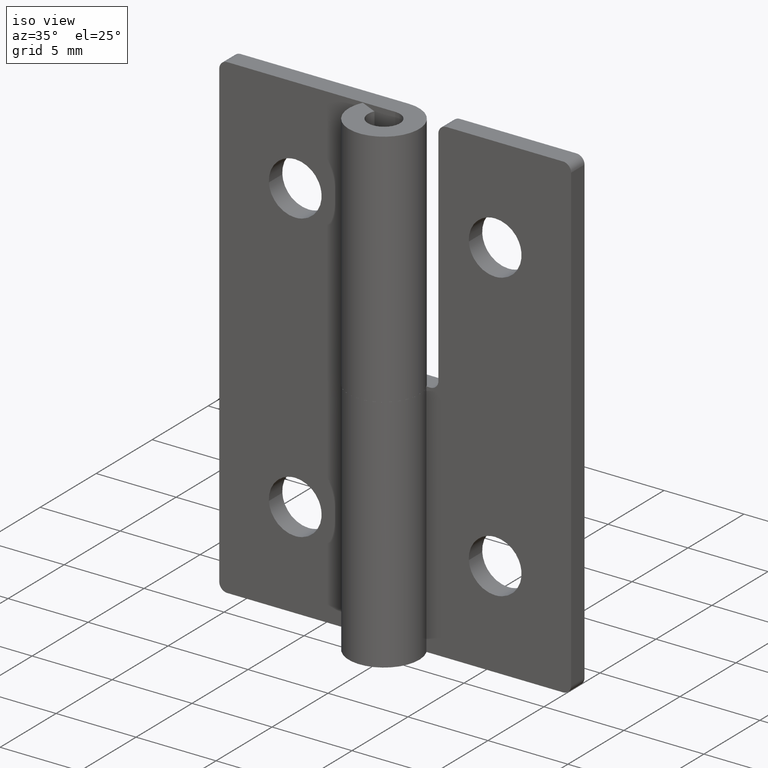
[diagram: clean part render]
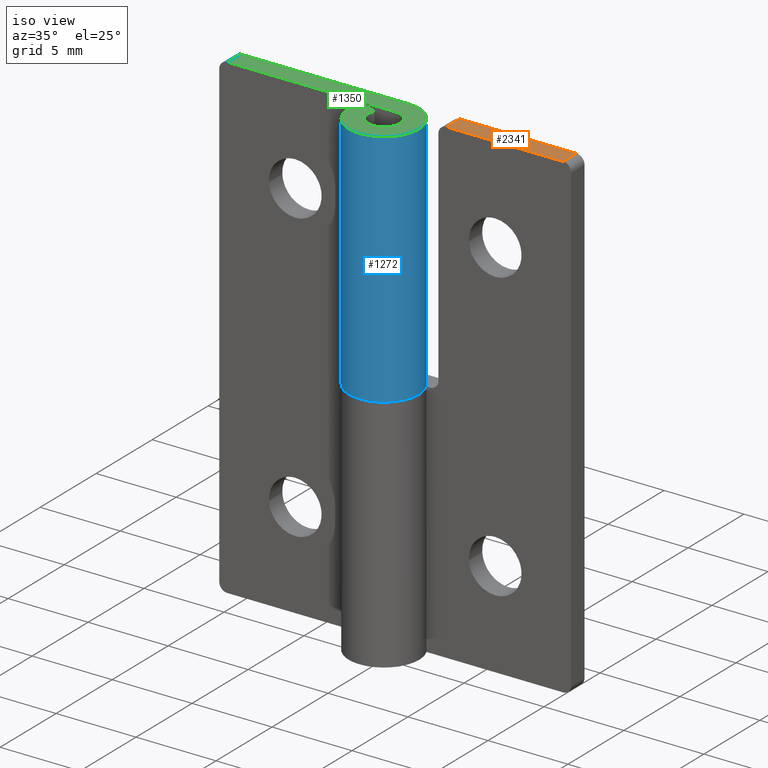
[diagram: same view with three faces highlighted in distinct colors, each labeled with its STEP entity id]
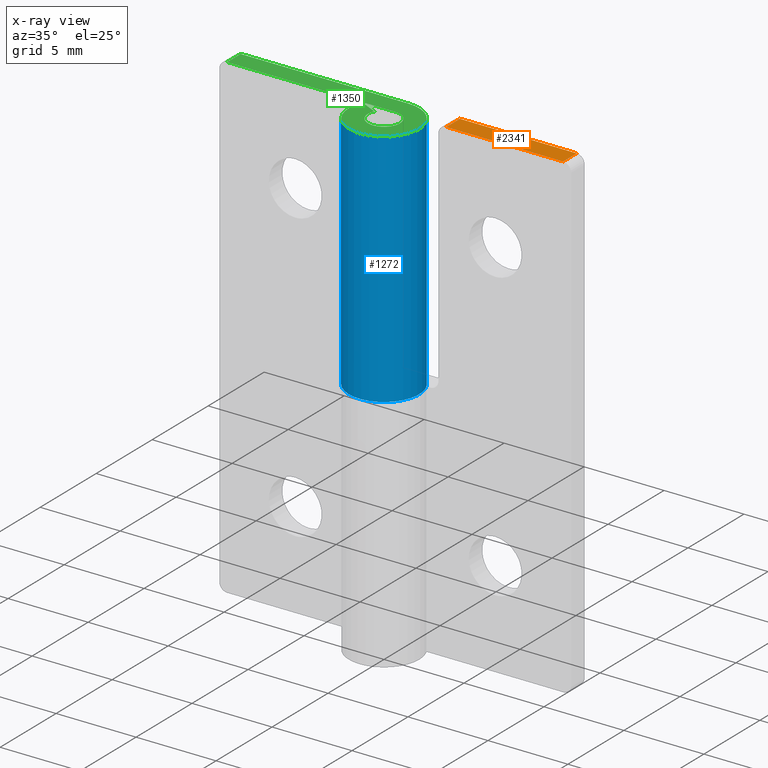
[diagram: x-ray of the same camera — body ghosted, the three highlighted faces saturated]
A machine part, iso view with three faces highlighted in distinct colors.
The next image is the same camera in x-ray (body ghosted, the three faces saturated) — at least one of them is partly hidden behind the body in this view.
Their STEP definitions:

[orange] entity #2341 — the highlighted face is a freeform B-spline surface patch.
#2007=CARTESIAN_POINT('',(10.500000000000000,1.0,30.0));
#2008=VERTEX_POINT('',#2007);
#2029=CARTESIAN_POINT('',(10.500000000000000,2.200000999999950,30.0));
#2030=VERTEX_POINT('',#2029);
#2044=CARTESIAN_POINT('',(10.500000000000000,2.200000999999950,30.0));
#2045=CARTESIAN_POINT('',(10.500000000000000,1.0,30.0));
#2046=QUASI_UNIFORM_CURVE('',1,(#2044,#2045),.UNSPECIFIED.,.F.,.U.);
#2047=EDGE_CURVE('',#2030,#2008,#2046,.T.);
#2127=CARTESIAN_POINT('',(3.200004000000000,1.0,30.0));
#2128=VERTEX_POINT('',#2127);
#2142=CARTESIAN_POINT('',(3.200004000000000,2.200000999999950,30.0));
#2143=VERTEX_POINT('',#2142);
#2144=CARTESIAN_POINT('',(3.200004000000000,2.200000999999950,30.0));
#2145=CARTESIAN_POINT('',(3.200004000000000,1.0,30.0));
#2146=QUASI_UNIFORM_CURVE('',1,(#2144,#2145),.UNSPECIFIED.,.F.,.U.);
#2147=EDGE_CURVE('',#2143,#2128,#2146,.T.);
#2322=CARTESIAN_POINT('',(2.835369282475949,0.940059952375837,30.0));
#2323=CARTESIAN_POINT('',(10.864634978592250,0.940059952375837,30.0));
#2324=CARTESIAN_POINT('',(2.835369282475949,2.259941079810648,30.0));
#2325=CARTESIAN_POINT('',(10.864634978592250,2.259941079810648,30.0));
#2326=B_SPLINE_SURFACE_WITH_KNOTS('',1,1,((#2322,#2324),(#2323,#2325)),.UNSPECIFIED.,.F.,.F.,.U.,(2,2),(2,2),(0.0,8.029265696116305),(0.041708334948495,0.958291687403247),.UNSPECIFIED.);
#2327=CARTESIAN_POINT('',(3.200004000000000,1.0,30.0));
#2328=CARTESIAN_POINT('',(10.500000000000000,1.0,30.0));
#2329=QUASI_UNIFORM_CURVE('',1,(#2327,#2328),.UNSPECIFIED.,.F.,.U.);
#2330=EDGE_CURVE('',#2128,#2008,#2329,.T.);
#2331=ORIENTED_EDGE('',*,*,#2330,.T.);
#2332=ORIENTED_EDGE('',*,*,#2047,.F.);
#2333=CARTESIAN_POINT('',(10.500000000000000,2.200000999999950,30.0));
#2334=CARTESIAN_POINT('',(3.200004000000000,2.200000999999950,30.0));
#2335=QUASI_UNIFORM_CURVE('',1,(#2333,#2334),.UNSPECIFIED.,.F.,.U.);
#2336=EDGE_CURVE('',#2030,#2143,#2335,.T.);
#2337=ORIENTED_EDGE('',*,*,#2336,.T.);
#2338=ORIENTED_EDGE('',*,*,#2147,.T.);
#2339=EDGE_LOOP('',(#2331,#2332,#2337,#2338));
#2340=FACE_OUTER_BOUND('',#2339,.T.);
#2341=ADVANCED_FACE('',(#2340),#2326,.T.);

[blue] entity #1272 — the highlighted face is a freeform B-spline surface patch.
#915=CARTESIAN_POINT('',(-1.984313483298445,0.950000000000000,15.0));
#916=VERTEX_POINT('',#915);
#917=CARTESIAN_POINT('',(0.0,2.200001000000000,15.0));
#918=VERTEX_POINT('',#917);
#919=CARTESIAN_POINT('',(-1.984313483298445,0.950000000000000,15.0));
#920=CARTESIAN_POINT('',(-2.698835732443150,-0.542459684451601,15.000000000000002));
#921=CARTESIAN_POINT('',(-1.463141258718792,-1.642929997156423,15.0));
#922=CARTESIAN_POINT('',(-0.227446784994433,-2.743400309861245,15.000000000000002));
#923=CARTESIAN_POINT('',(1.172603939955857,-1.861450546898628,15.0));
#924=CARTESIAN_POINT('',(2.572654664906147,-0.979500783936012,15.000000000000002));
#925=CARTESIAN_POINT('',(2.113668884094312,0.610250406523811,15.0));
#926=CARTESIAN_POINT('',(1.654683103282476,2.200001596983634,15.000000000000002));
#927=CARTESIAN_POINT('',(0.0,2.200001000000000,15.0));
#935=(BOUNDED_CURVE()B_SPLINE_CURVE(2,(#919,#920,#921,#922,#923,#924,#925,#926,#927),.UNSPECIFIED.,.F.,.U.)B_SPLINE_CURVE_WITH_KNOTS((3,2,2,2,3),(0.0,0.250000000000000,0.500000000000000,0.750000000000000,1.0),.UNSPECIFIED.)CURVE()GEOMETRIC_REPRESENTATION_ITEM()RATIONAL_B_SPLINE_CURVE((1.0,0.799182679829321,1.0,0.799182679829321,1.0,0.799182679829321,1.0,0.799182679829321,1.0))REPRESENTATION_ITEM(''));
#936=EDGE_CURVE('',#916,#918,#935,.T.);
#1214=CARTESIAN_POINT('',(-0.095962652203736,2.197906087480086,14.625000000000000));
#1215=CARTESIAN_POINT('',(-0.095962652203736,2.197906087480086,30.384375000000009));
#1216=CARTESIAN_POINT('',(2.538927614001526,2.312947880963064,14.624999999999998));
#1217=CARTESIAN_POINT('',(2.538927614001526,2.312947880963064,30.384375000000002));
#1218=CARTESIAN_POINT('',(2.179471176718562,-0.299842274959690,14.625000000000000));
#1219=CARTESIAN_POINT('',(2.179471176718562,-0.299842274959690,30.384375000000009));
#1220=CARTESIAN_POINT('',(1.820014739435599,-2.912632430882443,14.624999999999998));
#1221=CARTESIAN_POINT('',(1.820014739435599,-2.912632430882443,30.384375000000002));
#1222=CARTESIAN_POINT('',(-0.685920827569293,-2.090337919645207,14.625000000000000));
#1223=CARTESIAN_POINT('',(-0.685920827569293,-2.090337919645207,30.384375000000009));
#1224=CARTESIAN_POINT('',(-3.191856394574184,-1.268043408407970,14.624999999999998));
#1225=CARTESIAN_POINT('',(-3.191856394574184,-1.268043408407970,30.384375000000002));
#1226=CARTESIAN_POINT('',(-1.933397647856322,1.049749272571138,14.625000000000000));
#1227=CARTESIAN_POINT('',(-1.933397647856322,1.049749272571138,30.384375000000009));
#1235=(BOUNDED_SURFACE()B_SPLINE_SURFACE(1,2,((#1214,#1216,#1218,#1220,#1222,#1224,#1226),(#1215,#1217,#1219,#1221,#1223,#1225,#1227)),.UNSPECIFIED.,.F.,.F.,.U.)B_SPLINE_SURFACE_WITH_KNOTS((2,2),(3,2,2,3),(0.0,15.759375000000009),(0.0,4.119100127658490,8.238200255316979,12.357300382975470),.UNSPECIFIED.)GEOMETRIC_REPRESENTATION_ITEM()RATIONAL_B_SPLINE_SURFACE(((1.0,0.640556560368615,1.0,0.640556560368615,1.0,0.640556560368615,1.0),(1.0,0.640556560368615,1.0,0.640556560368615,1.0,0.640556560368615,1.0)))REPRESENTATION_ITEM('')SURFACE());
#1236=CARTESIAN_POINT('',(-1.984313483298445,0.950000000000000,30.0));
#1237=VERTEX_POINT('',#1236);
#1238=CARTESIAN_POINT('',(-1.984313483298445,0.950000000000000,15.0));
#1239=CARTESIAN_POINT('',(-1.984313483298445,0.950000000000000,30.0));
#1240=QUASI_UNIFORM_CURVE('',1,(#1238,#1239),.UNSPECIFIED.,.F.,.U.);
#1241=EDGE_CURVE('',#916,#1237,#1240,.T.);
#1242=ORIENTED_EDGE('',*,*,#1241,.F.);
#1243=ORIENTED_EDGE('',*,*,#936,.T.);
#1244=CARTESIAN_POINT('',(-0.000000115191736,2.200000000000000,30.0));
#1245=VERTEX_POINT('',#1244);
#1246=CARTESIAN_POINT('',(0.0,2.200001000000000,15.0));
#1247=CARTESIAN_POINT('',(-0.000000115191736,2.200000000000000,30.0));
#1248=QUASI_UNIFORM_CURVE('',1,(#1246,#1247),.UNSPECIFIED.,.F.,.U.);
#1249=EDGE_CURVE('',#918,#1245,#1248,.T.);
#1250=ORIENTED_EDGE('',*,*,#1249,.T.);
#1251=CARTESIAN_POINT('',(-0.000000115191736,2.199999999999997,30.0));
#1252=CARTESIAN_POINT('',(1.654683010635165,2.200000086639007,30.0));
#1253=CARTESIAN_POINT('',(2.113668860129886,0.610249088255959,30.0));
#1254=CARTESIAN_POINT('',(2.572654709624608,-0.979501910127090,30.0));
#1255=CARTESIAN_POINT('',(1.172603988688535,-1.861451016199927,30.0));
#1256=CARTESIAN_POINT('',(-0.227446732247538,-2.743400122272762,30.0));
#1257=CARTESIAN_POINT('',(-1.463141237212890,-1.642929615037460,30.0));
#1258=CARTESIAN_POINT('',(-2.698835742178242,-0.542459107802157,30.0));
#1259=CARTESIAN_POINT('',(-1.984313483298444,0.949999999999998,30.0));
#1267=(BOUNDED_CURVE()B_SPLINE_CURVE(2,(#1251,#1252,#1253,#1254,#1255,#1256,#1257,#1258,#1259),.UNSPECIFIED.,.F.,.U.)B_SPLINE_CURVE_WITH_KNOTS((3,2,2,2,3),(0.0,0.250000000000000,0.500000000000000,0.750000000000000,1.0),.UNSPECIFIED.)CURVE()GEOMETRIC_REPRESENTATION_ITEM()RATIONAL_B_SPLINE_CURVE((1.0,0.799182675895208,1.0,0.799182675895208,1.0,0.799182675895208,1.0,0.799182675895208,1.0))REPRESENTATION_ITEM(''));
#1268=EDGE_CURVE('',#1245,#1237,#1267,.T.);
#1269=ORIENTED_EDGE('',*,*,#1268,.T.);
#1270=EDGE_LOOP('',(#1242,#1243,#1250,#1269));
#1271=FACE_OUTER_BOUND('',#1270,.T.);
#1272=ADVANCED_FACE('',(#1271),#1235,.T.);

[green] entity #1350 — the highlighted face is a freeform B-spline surface patch.
#994=CARTESIAN_POINT('',(-10.500000000000000,1.0,30.0));
#995=VERTEX_POINT('',#994);
#1011=CARTESIAN_POINT('',(-10.500000000000000,2.200000999999950,30.0));
#1012=VERTEX_POINT('',#1011);
#1013=CARTESIAN_POINT('',(-10.500000000000000,2.200000999999950,30.0));
#1014=CARTESIAN_POINT('',(-10.500000000000000,1.0,30.0));
#1015=QUASI_UNIFORM_CURVE('',1,(#1013,#1014),.UNSPECIFIED.,.F.,.U.);
#1016=EDGE_CURVE('',#1012,#995,#1015,.T.);
#1178=CARTESIAN_POINT('',(-0.901960674226565,0.431818181818182,30.0));
#1179=VERTEX_POINT('',#1178);
#1185=CARTESIAN_POINT('',(0.0,1.0,30.0));
#1186=VERTEX_POINT('',#1185);
#1187=CARTESIAN_POINT('',(0.0,1.0,30.0));
#1188=CARTESIAN_POINT('',(0.752128683310216,1.0,30.000000000000004));
#1189=CARTESIAN_POINT('',(0.960758583679232,0.277385911478351,30.0));
#1190=CARTESIAN_POINT('',(1.169388484048249,-0.445228177043299,30.000000000000004));
#1191=CARTESIAN_POINT('',(0.533001790889026,-0.846114112226649,30.0));
#1192=CARTESIAN_POINT('',(-0.103384902270197,-1.247000047410000,30.000000000000004));
#1193=CARTESIAN_POINT('',(-0.665064208508542,-0.746786179947719,30.0));
#1194=CARTESIAN_POINT('',(-1.226743514746886,-0.246572312485439,30.000000000000004));
#1195=CARTESIAN_POINT('',(-0.901960674226565,0.431818181818182,30.0));
#1203=(BOUNDED_CURVE()B_SPLINE_CURVE(2,(#1187,#1188,#1189,#1190,#1191,#1192,#1193,#1194,#1195),.UNSPECIFIED.,.F.,.U.)B_SPLINE_CURVE_WITH_KNOTS((3,2,2,2,3),(0.0,0.250000000000000,0.500000000000000,0.750000000000000,1.0),.UNSPECIFIED.)CURVE()GEOMETRIC_REPRESENTATION_ITEM()RATIONAL_B_SPLINE_CURVE((1.0,0.799182679829321,1.0,0.799182679829321,1.0,0.799182679829321,1.0,0.799182679829321,1.0))REPRESENTATION_ITEM(''));
#1204=EDGE_CURVE('',#1186,#1179,#1203,.T.);
#1236=CARTESIAN_POINT('',(-1.984313483298445,0.950000000000000,30.0));
#1237=VERTEX_POINT('',#1236);
#1244=CARTESIAN_POINT('',(-0.000000115191736,2.200000000000000,30.0));
#1245=VERTEX_POINT('',#1244);
#1251=CARTESIAN_POINT('',(-0.000000115191736,2.199999999999997,30.0));
#1252=CARTESIAN_POINT('',(1.654683010635165,2.200000086639007,30.0));
#1253=CARTESIAN_POINT('',(2.113668860129886,0.610249088255959,30.0));
#1254=CARTESIAN_POINT('',(2.572654709624608,-0.979501910127090,30.0));
#1255=CARTESIAN_POINT('',(1.172603988688535,-1.861451016199927,30.0));
#1256=CARTESIAN_POINT('',(-0.227446732247538,-2.743400122272762,30.0));
#1257=CARTESIAN_POINT('',(-1.463141237212890,-1.642929615037460,30.0));
#1258=CARTESIAN_POINT('',(-2.698835742178242,-0.542459107802157,30.0));
#1259=CARTESIAN_POINT('',(-1.984313483298444,0.949999999999998,30.0));
#1267=(BOUNDED_CURVE()B_SPLINE_CURVE(2,(#1251,#1252,#1253,#1254,#1255,#1256,#1257,#1258,#1259),.UNSPECIFIED.,.F.,.U.)B_SPLINE_CURVE_WITH_KNOTS((3,2,2,2,3),(0.0,0.250000000000000,0.500000000000000,0.750000000000000,1.0),.UNSPECIFIED.)CURVE()GEOMETRIC_REPRESENTATION_ITEM()RATIONAL_B_SPLINE_CURVE((1.0,0.799182675895208,1.0,0.799182675895208,1.0,0.799182675895208,1.0,0.799182675895208,1.0))REPRESENTATION_ITEM(''));
#1268=EDGE_CURVE('',#1245,#1237,#1267,.T.);
#1280=CARTESIAN_POINT('',(-0.901960674226565,0.431818181818182,30.0));
#1281=CARTESIAN_POINT('',(-1.984313483298445,0.950000000000000,30.0));
#1282=QUASI_UNIFORM_CURVE('',1,(#1280,#1281),.UNSPECIFIED.,.F.,.U.);
#1283=EDGE_CURVE('',#1179,#1237,#1282,.T.);
#1329=CARTESIAN_POINT('',(-11.134335575641620,-2.417309384225262,30.0));
#1330=CARTESIAN_POINT('',(2.833747332793693,-2.417309384225262,30.0));
#1331=CARTESIAN_POINT('',(-11.134335575641620,2.419663621090923,30.0));
#1332=CARTESIAN_POINT('',(2.833747332793693,2.419663621090923,30.0));
#1333=B_SPLINE_SURFACE_WITH_KNOTS('',1,1,((#1329,#1331),(#1330,#1332)),.UNSPECIFIED.,.F.,.F.,.U.,(2,2),(2,2),(0.0,13.968082908435310),(0.0,4.836973005316185),.UNSPECIFIED.);
#1334=ORIENTED_EDGE('',*,*,#1016,.T.);
#1335=CARTESIAN_POINT('',(-10.500000000000000,1.0,30.0));
#1336=CARTESIAN_POINT('',(0.0,1.0,30.0));
#1337=QUASI_UNIFORM_CURVE('',1,(#1335,#1336),.UNSPECIFIED.,.F.,.U.);
#1338=EDGE_CURVE('',#995,#1186,#1337,.T.);
#1339=ORIENTED_EDGE('',*,*,#1338,.T.);
#1340=ORIENTED_EDGE('',*,*,#1204,.T.);
#1341=ORIENTED_EDGE('',*,*,#1283,.T.);
#1342=ORIENTED_EDGE('',*,*,#1268,.F.);
#1343=CARTESIAN_POINT('',(-0.000000115191736,2.200000000000000,30.0));
#1344=CARTESIAN_POINT('',(-10.500000000000000,2.200000999999950,30.0));
#1345=QUASI_UNIFORM_CURVE('',1,(#1343,#1344),.UNSPECIFIED.,.F.,.U.);
#1346=EDGE_CURVE('',#1245,#1012,#1345,.T.);
#1347=ORIENTED_EDGE('',*,*,#1346,.T.);
#1348=EDGE_LOOP('',(#1334,#1339,#1340,#1341,#1342,#1347));
#1349=FACE_OUTER_BOUND('',#1348,.T.);
#1350=ADVANCED_FACE('',(#1349),#1333,.T.);